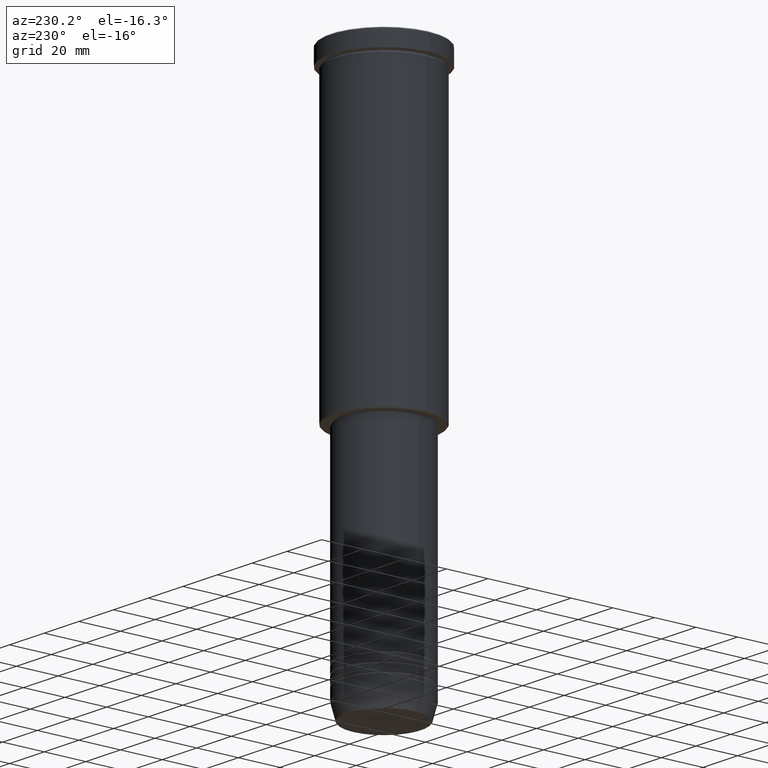
[diagram: clean part render]
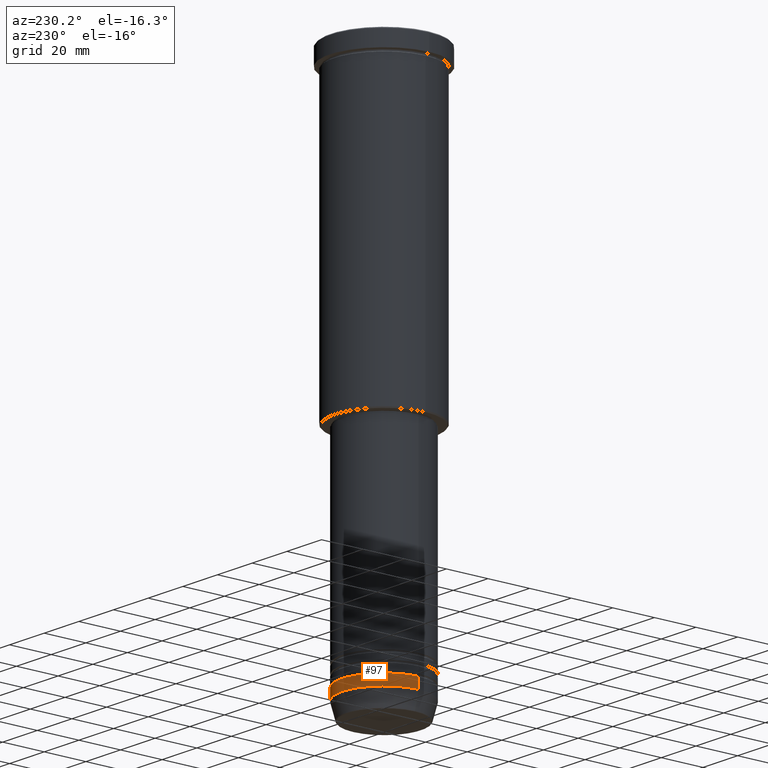
[diagram: same view with one face highlighted and labeled with its STEP entity id]
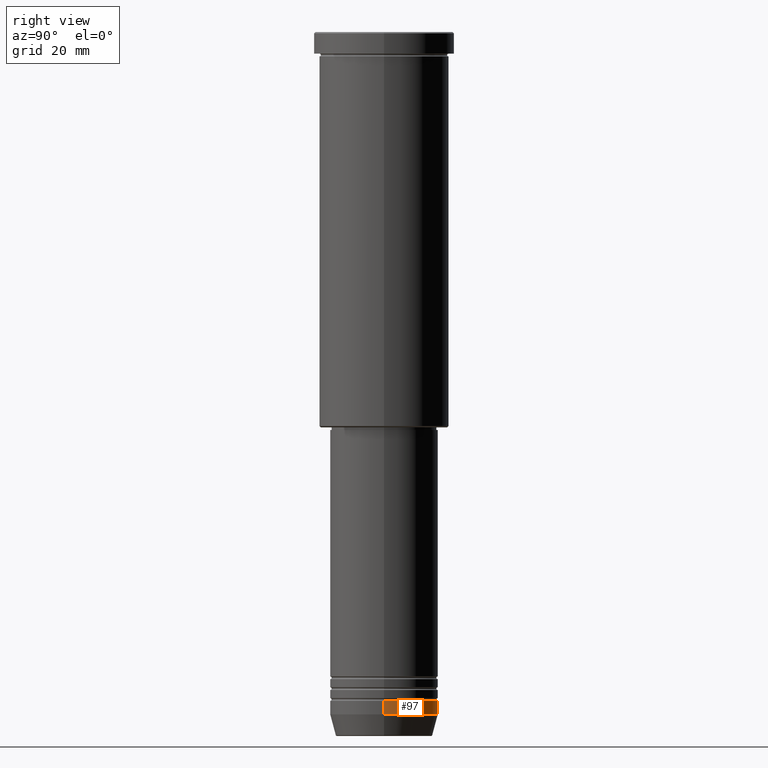
[diagram: same view with one face highlighted and labeled with its STEP entity id]
A machine part, auxiliary view. The second image highlights one B-rep face of the part: STEP entity #97.
A second angle (right view) of the same face is appended — the face is thin or edge-on in the first view.
In plain terms, the highlighted cylindrical surface (partial cylindrical patch) has radius 20 mm, axis along (-0, -0, 1).
Its self-contained STEP definition (entity closure, byte-faithful):
#4 = CARTESIAN_POINT ( 'NONE',  ( 0.000000000000000000, 0.000000000000000000, 0.000000000000000000 ) ) ;
#27 = CARTESIAN_POINT ( 'NONE',  ( -20.00000000000000000, 2.449293598294706513E-15, -247.0000000000000000 ) ) ;
#63 = DIRECTION ( 'NONE',  ( -0.000000000000000000, -0.000000000000000000, 1.000000000000000000 ) ) ;
#75 = EDGE_CURVE ( 'NONE', #318, #1066, #819, .T. ) ;
#94 = ORIENTED_EDGE ( 'NONE', *, *, #75, .T. ) ;
#97 = ADVANCED_FACE ( 'NONE', ( #201 ), #546, .T. ) ;
#104 = DIRECTION ( 'NONE',  ( -0.000000000000000000, -0.000000000000000000, 1.000000000000000000 ) ) ;
#106 = CIRCLE ( 'NONE', #541, 20.00000000000000355 ) ;
#125 = AXIS2_PLACEMENT_3D ( 'NONE', #266, #175, #727 ) ;
#175 = DIRECTION ( 'NONE',  ( -0.000000000000000000, -0.000000000000000000, 1.000000000000000000 ) ) ;
#201 = FACE_OUTER_BOUND ( 'NONE', #965, .T. ) ;
#221 = ORIENTED_EDGE ( 'NONE', *, *, #608, .F. ) ;
#266 = CARTESIAN_POINT ( 'NONE',  ( 0.000000000000000000, 0.000000000000000000, -247.0000000000000000 ) ) ;
#282 = CARTESIAN_POINT ( 'NONE',  ( 20.00000000000000355, 0.000000000000000000, -252.0000000000000000 ) ) ;
#318 = VERTEX_POINT ( 'NONE', #707 ) ;
#352 = VECTOR ( 'NONE', #813, 1000.000000000000000 ) ;
#377 = DIRECTION ( 'NONE',  ( -0.000000000000000000, -0.000000000000000000, 1.000000000000000000 ) ) ;
#410 = CARTESIAN_POINT ( 'NONE',  ( 0.000000000000000000, 0.000000000000000000, -252.0000000000000000 ) ) ;
#412 = ORIENTED_EDGE ( 'NONE', *, *, #807, .T. ) ;
#440 = AXIS2_PLACEMENT_3D ( 'NONE', #4, #377, #1098 ) ;
#441 = CARTESIAN_POINT ( 'NONE',  ( -20.00000000000000355, 2.449293598294706907E-15, 0.000000000000000000 ) ) ;
#496 = VERTEX_POINT ( 'NONE', #282 ) ;
#541 = AXIS2_PLACEMENT_3D ( 'NONE', #410, #63, #684 ) ;
#546 = CYLINDRICAL_SURFACE ( 'NONE', #440, 20.00000000000000355 ) ;
#557 = EDGE_CURVE ( 'NONE', #496, #875, #914, .T. ) ;
#608 = EDGE_CURVE ( 'NONE', #875, #1066, #751, .T. ) ;
#684 = DIRECTION ( 'NONE',  ( 1.000000000000000000, 0.000000000000000000, 0.000000000000000000 ) ) ;
#707 = CARTESIAN_POINT ( 'NONE',  ( -20.00000000000000355, 2.449293598294706907E-15, -252.0000000000000000 ) ) ;
#727 = DIRECTION ( 'NONE',  ( 1.000000000000000000, 0.000000000000000000, 0.000000000000000000 ) ) ;
#751 = CIRCLE ( 'NONE', #125, 20.00000000000000000 ) ;
#807 = EDGE_CURVE ( 'NONE', #496, #318, #106, .T. ) ;
#813 = DIRECTION ( 'NONE',  ( -0.000000000000000000, -0.000000000000000000, 1.000000000000000000 ) ) ;
#819 = LINE ( 'NONE', #441, #352 ) ;
#861 = CARTESIAN_POINT ( 'NONE',  ( 20.00000000000000000, 0.000000000000000000, -247.0000000000000000 ) ) ;
#875 = VERTEX_POINT ( 'NONE', #861 ) ;
#910 = CARTESIAN_POINT ( 'NONE',  ( 20.00000000000000355, 0.000000000000000000, 0.000000000000000000 ) ) ;
#914 = LINE ( 'NONE', #910, #993 ) ;
#965 = EDGE_LOOP ( 'NONE', ( #412, #94, #221, #1022 ) ) ;
#993 = VECTOR ( 'NONE', #104, 1000.000000000000000 ) ;
#1022 = ORIENTED_EDGE ( 'NONE', *, *, #557, .F. ) ;
#1066 = VERTEX_POINT ( 'NONE', #27 ) ;
#1098 = DIRECTION ( 'NONE',  ( 1.000000000000000000, 0.000000000000000000, 0.000000000000000000 ) ) ;